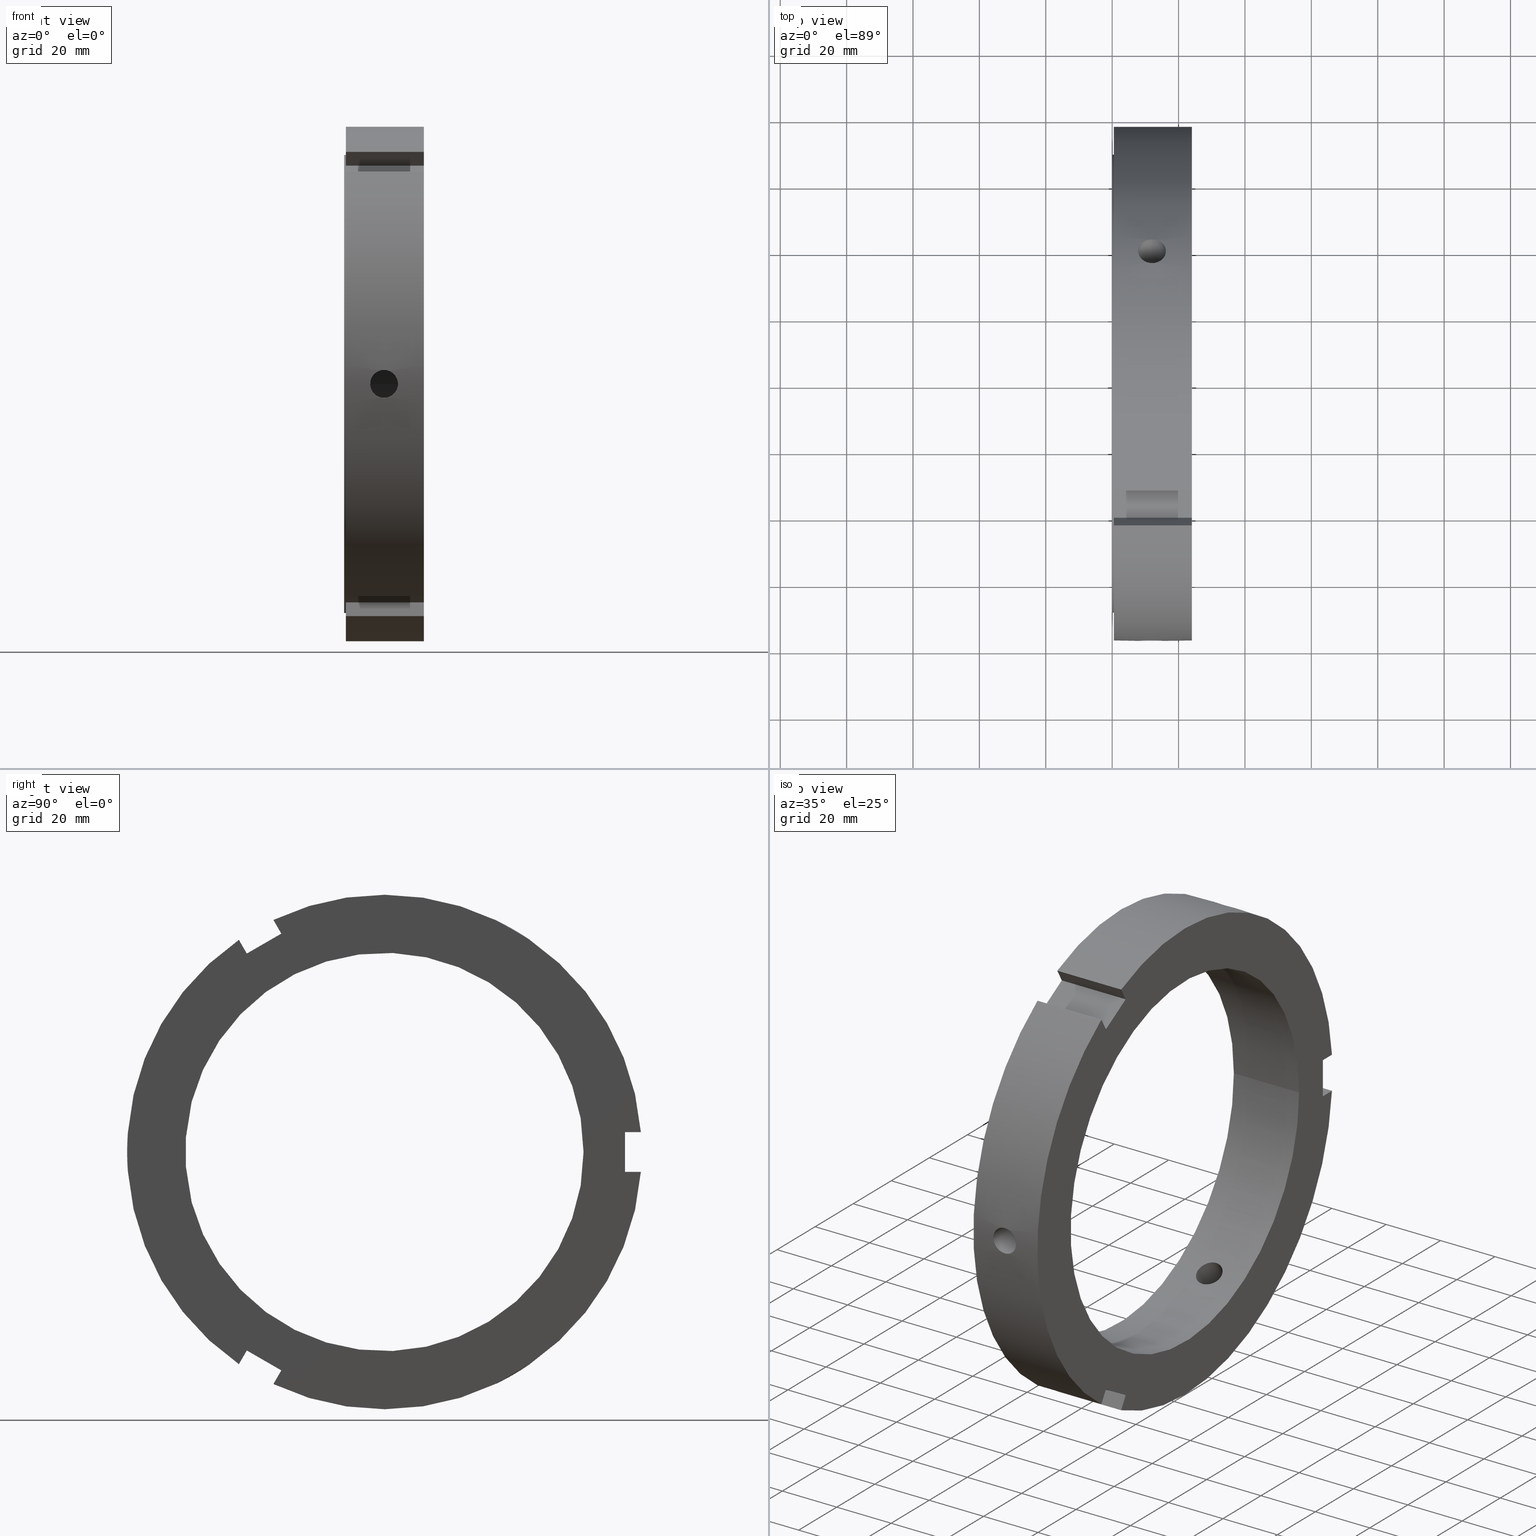
[diagram: canonical four-view strip — front | top / right | iso, engineering-drawing reading convention]
A machine part, canonical four-view strip (front | top / right | iso — engineering-drawing reading convention). The complete STEP part file that produces these views, byte-faithful:
ISO-10303-21;
HEADER;
/****************************************************************
 * Generated by software with PDE/Lib inside                    *
 * PDElib Version v51a, created Thu 01/14/2010                  *
 * ITI Transcendata (http://www.transcendata.com/)              *
 ****************************************************************/
FILE_DESCRIPTION((''),'2;1');
FILE_NAME('\\\\CAD-SVN\\cad-svn\\\X2\628088538AB2\X0\\\FKD\X2\88FD4F5C\X0\SP\\\X2\90E854C130E930A430D630E930EA\X0\\\HP \X2\30A230C330D730C730FC30C87528\X0\CAD\X2\30C730FC30BFFF0867007D42FF09\X0\\\3D data\\ZMT\\FKD ZMT120.stp','2014-07-16T14:51:15',('fkd-ct1n'),(''),'Autodesk Inventor 2011','Autodesk Inventor 2011','');
FILE_SCHEMA(('AUTOMOTIVE_DESIGN { 1 0 10303 214 1 1 1 1 }'));
ENDSEC;
DATA;
#5=APPLICATION_CONTEXT('automotive design');
#6=APPLICATION_PROTOCOL_DEFINITION('International Standard','automotive_design',2001,#5);
#7=PRODUCT_CONTEXT('',#5,'mechanical');
#8=PRODUCT('FKD ZMT120','FKD ZMT120',$,(#7));
#9=PRODUCT_RELATED_PRODUCT_CATEGORY('part',$,(#8));
#10=PRODUCT_DEFINITION_FORMATION('',$,#8);
#11=PRODUCT_DEFINITION_CONTEXT('part definition',#5,'design');
#12=PRODUCT_DEFINITION('',$,#10,#11);
#18=(NAMED_UNIT(*)PLANE_ANGLE_UNIT()SI_UNIT($,.RADIAN.));
#19=DIMENSIONAL_EXPONENTS(0.0,0.0,0.0,0.0,0.0,0.0,0.0);
#20=PLANE_ANGLE_MEASURE_WITH_UNIT(PLANE_ANGLE_MEASURE(0.017453292500000),#18);
#24=(CONVERSION_BASED_UNIT('DEGREE',#20)NAMED_UNIT(#19)PLANE_ANGLE_UNIT());
#28=(NAMED_UNIT(*)SI_UNIT($,.STERADIAN.)SOLID_ANGLE_UNIT());
#32=(LENGTH_UNIT()NAMED_UNIT(*)SI_UNIT(.MILLI.,.METRE.));
#34=UNCERTAINTY_MEASURE_WITH_UNIT(LENGTH_MEASURE(0.010000000000000),#32,'DISTANCE_ACCURACY_VALUE','');
#36=(GEOMETRIC_REPRESENTATION_CONTEXT(3)GLOBAL_UNCERTAINTY_ASSIGNED_CONTEXT((#34))GLOBAL_UNIT_ASSIGNED_CONTEXT((#24,#28,#32))REPRESENTATION_CONTEXT('None','None'));
#37=AXIS2_PLACEMENT_3D('',#38,#39,#40);
#38=CARTESIAN_POINT('',(0.0,0.0,0.0));
#39=DIRECTION('',(0.0,0.0,1.0));
#40=DIRECTION('',(1.0,0.0,0.0));
#41=SHAPE_REPRESENTATION('',(#37),#36);
#42=PRODUCT_DEFINITION_SHAPE('','',#12);
#43=SHAPE_DEFINITION_REPRESENTATION(#42,#41);
#49=(NAMED_UNIT(*)PLANE_ANGLE_UNIT()SI_UNIT($,.RADIAN.));
#50=DIMENSIONAL_EXPONENTS(0.0,0.0,0.0,0.0,0.0,0.0,0.0);
#51=PLANE_ANGLE_MEASURE_WITH_UNIT(PLANE_ANGLE_MEASURE(0.017453292500000),#49);
#55=(CONVERSION_BASED_UNIT('DEGREE',#51)NAMED_UNIT(#50)PLANE_ANGLE_UNIT());
#59=(NAMED_UNIT(*)SI_UNIT($,.STERADIAN.)SOLID_ANGLE_UNIT());
#63=(LENGTH_UNIT()NAMED_UNIT(*)SI_UNIT(.MILLI.,.METRE.));
#65=UNCERTAINTY_MEASURE_WITH_UNIT(LENGTH_MEASURE(0.000001000000000),#63,'DISTANCE_ACCURACY_VALUE','');
#67=(GEOMETRIC_REPRESENTATION_CONTEXT(3)GLOBAL_UNCERTAINTY_ASSIGNED_CONTEXT((#65))GLOBAL_UNIT_ASSIGNED_CONTEXT((#55,#59,#63))REPRESENTATION_CONTEXT('','3D'));
#68=CARTESIAN_POINT('',(23.999999999999986,-41.446152422706668,-59.786841774371794));
#69=DIRECTION('',(0.0,-0.866025403784438,0.500000000000001));
#70=DIRECTION('',(-1.0,0.0,0.0));
#71=AXIS2_PLACEMENT_3D('',#68,#69,#70);
#72=PLANE('',#71);
#73=CARTESIAN_POINT('',(0.499999999999980,-41.446152422706668,-59.786841774371794));
#74=VERTEX_POINT('',#73);
#75=CARTESIAN_POINT('',(0.499999999999980,-43.829848854707578,-63.915525104418016));
#76=VERTEX_POINT('',#75);
#77=CARTESIAN_POINT('',(0.499999999999978,-41.446152422706682,-59.786841774371794));
#78=DIRECTION('',(0.0,-0.500000000000000,-0.866025403784439));
#79=VECTOR('',#78,4.767392864001821);
#80=LINE('',#77,#79);
#81=EDGE_CURVE('',#74,#76,#80,.T.);
#82=ORIENTED_EDGE('',*,*,#81,.F.);
#83=CARTESIAN_POINT('',(23.999999999999986,-41.446152422706668,-59.786841774371794));
#84=VERTEX_POINT('',#83);
#85=CARTESIAN_POINT('',(23.999999999999986,-41.446152422706668,-59.786841774371794));
#86=DIRECTION('',(-1.0,0.0,0.0));
#87=VECTOR('',#86,23.500000000000007);
#88=LINE('',#85,#87);
#89=EDGE_CURVE('',#84,#74,#88,.T.);
#90=ORIENTED_EDGE('',*,*,#89,.F.);
#91=CARTESIAN_POINT('',(23.999999999999986,-43.829848854707578,-63.915525104418016));
#92=VERTEX_POINT('',#91);
#93=CARTESIAN_POINT('',(23.999999999999986,-43.829848854707592,-63.915525104418023));
#94=DIRECTION('',(0.0,0.500000000000001,0.866025403784438));
#95=VECTOR('',#94,4.767392864001815);
#96=LINE('',#93,#95);
#97=EDGE_CURVE('',#92,#84,#96,.T.);
#98=ORIENTED_EDGE('',*,*,#97,.F.);
#99=CARTESIAN_POINT('',(0.499999999999979,-43.829848854707578,-63.915525104417995));
#100=DIRECTION('',(1.0,0.0,0.0));
#101=VECTOR('',#100,23.500000000000007);
#102=LINE('',#99,#101);
#103=EDGE_CURVE('',#76,#92,#102,.T.);
#104=ORIENTED_EDGE('',*,*,#103,.F.);
#105=EDGE_LOOP('',(#82,#90,#98,#104));
#106=FACE_OUTER_BOUND('',#105,.T.);
#107=ADVANCED_FACE('',(#106),#72,.F.);
#108=CARTESIAN_POINT('',(23.999999999999986,-33.553847577293411,-70.116968793293992));
#109=DIRECTION('',(0.0,0.866025403784438,-0.500000000000001));
#110=DIRECTION('',(1.0,0.0,0.0));
#111=AXIS2_PLACEMENT_3D('',#108,#109,#110);
#112=PLANE('',#111);
#113=CARTESIAN_POINT('',(0.499999999999980,-33.437544009294321,-69.915525104418009));
#114=VERTEX_POINT('',#113);
#115=CARTESIAN_POINT('',(0.499999999999980,-31.053847577293411,-65.786841774371794));
#116=VERTEX_POINT('',#115);
#117=CARTESIAN_POINT('',(0.499999999999978,-33.437544009294328,-69.915525104418037));
#118=DIRECTION('',(0.0,0.500000000000000,0.866025403784439));
#119=VECTOR('',#118,4.767392864001821);
#120=LINE('',#117,#119);
#121=EDGE_CURVE('',#114,#116,#120,.T.);
#122=ORIENTED_EDGE('',*,*,#121,.F.);
#123=CARTESIAN_POINT('',(23.999999999999986,-33.437544009294321,-69.915525104418009));
#124=VERTEX_POINT('',#123);
#125=CARTESIAN_POINT('',(23.999999999999986,-33.437544009294314,-69.915525104418009));
#126=DIRECTION('',(-1.0,0.0,0.0));
#127=VECTOR('',#126,23.500000000000007);
#128=LINE('',#125,#127);
#129=EDGE_CURVE('',#124,#114,#128,.T.);
#130=ORIENTED_EDGE('',*,*,#129,.F.);
#131=CARTESIAN_POINT('',(23.999999999999986,-31.053847577293411,-65.786841774371794));
#132=VERTEX_POINT('',#131);
#133=CARTESIAN_POINT('',(23.999999999999986,-31.053847577293411,-65.786841774371794));
#134=DIRECTION('',(0.0,-0.500000000000000,-0.866025403784439));
#135=VECTOR('',#134,4.767392864001837);
#136=LINE('',#133,#135);
#137=EDGE_CURVE('',#132,#124,#136,.T.);
#138=ORIENTED_EDGE('',*,*,#137,.F.);
#139=CARTESIAN_POINT('',(23.999999999999986,-31.053847577293411,-65.786841774371794));
#140=DIRECTION('',(-1.0,0.0,0.0));
#141=VECTOR('',#140,23.500000000000007);
#142=LINE('',#139,#141);
#143=EDGE_CURVE('',#132,#116,#142,.T.);
#144=ORIENTED_EDGE('',*,*,#143,.T.);
#145=EDGE_LOOP('',(#122,#130,#138,#144));
#146=FACE_OUTER_BOUND('',#145,.T.);
#147=ADVANCED_FACE('',(#146),#112,.F.);
#148=CARTESIAN_POINT('',(23.999999999999986,-31.053847577293411,-65.786841774371794));
#149=DIRECTION('',(0.0,0.500000000000001,0.866025403784438));
#150=DIRECTION('',(0.0,-0.866025403784438,0.500000000000000));
#151=AXIS2_PLACEMENT_3D('',#148,#149,#150);
#152=PLANE('',#151);
#153=CARTESIAN_POINT('',(0.499999999999978,-31.053847577293425,-65.786841774371808));
#154=DIRECTION('',(0.0,-0.866025403784438,0.500000000000000));
#155=VECTOR('',#154,11.999999999999995);
#156=LINE('',#153,#155);
#157=EDGE_CURVE('',#116,#74,#156,.T.);
#158=ORIENTED_EDGE('',*,*,#157,.F.);
#159=ORIENTED_EDGE('',*,*,#143,.F.);
#160=CARTESIAN_POINT('',(23.999999999999986,-41.446152422706675,-59.786841774371794));
#161=DIRECTION('',(0.0,0.866025403784438,-0.500000000000001));
#162=VECTOR('',#161,11.999999999999988);
#163=LINE('',#160,#162);
#164=EDGE_CURVE('',#84,#132,#163,.T.);
#165=ORIENTED_EDGE('',*,*,#164,.F.);
#166=ORIENTED_EDGE('',*,*,#89,.T.);
#167=EDGE_LOOP('',(#158,#159,#165,#166));
#168=FACE_OUTER_BOUND('',#167,.T.);
#169=ADVANCED_FACE('',(#168),#152,.F.);
#170=CARTESIAN_POINT('',(11.999999999999984,110.174799629861370,190.828350672640340));
#171=DIRECTION('',(0.0,-0.500000000000001,-0.866025403784438));
#172=DIRECTION('',(-1.0,0.0,0.0));
#173=AXIS2_PLACEMENT_3D('',#170,#171,#172);
#174=CYLINDRICAL_SURFACE('',#173,4.188000000000000);
#175=CARTESIAN_POINT('',(11.999999999999984,42.320294496695240,64.924900259553624));
#176=VERTEX_POINT('',#175);
#177=CARTESIAN_POINT('',(11.999999999999984,42.320294496695247,64.924900259553624));
#178=CARTESIAN_POINT('',(12.525964593773827,42.320294496695247,64.924900259553624));
#179=CARTESIAN_POINT('',(13.086917241225173,42.232201750691601,64.982589392082332));
#180=CARTESIAN_POINT('',(14.118723575508250,41.872717265855627,65.214809188765045));
#181=CARTESIAN_POINT('',(14.589585949451681,41.601176498465279,65.389070450448429));
#182=CARTESIAN_POINT('',(15.333140342570605,40.971455917133348,65.785471195247538));
#183=CARTESIAN_POINT('',(15.655432256882104,40.571244418953100,66.034009391728972));
#184=CARTESIAN_POINT('',(16.082864919867323,39.688345750655046,66.568397018586751));
#185=CARTESIAN_POINT('',(16.187999999999985,39.205498568363375,66.853986572233893));
#186=CARTESIAN_POINT('',(16.187999999999985,38.294501431636718,67.379951014354006));
#187=CARTESIAN_POINT('',(16.082864919867326,37.805750031977013,67.655314163540766));
#188=CARTESIAN_POINT('',(15.655432256882111,36.901507437501060,68.152733025825427));
#189=CARTESIAN_POINT('',(15.333140342570605,36.486161296447250,68.375057251895441));
#190=CARTESIAN_POINT('',(14.589585949451687,35.828007890706168,68.722210900215259));
#191=CARTESIAN_POINT('',(14.118723575508263,35.541322827497645,68.870241472096723));
#192=CARTESIAN_POINT('',(13.086917241225184,35.160472341890767,69.065454269889685));
#193=CARTESIAN_POINT('',(12.525964593773828,35.066465714596802,69.112900259553612));
#194=CARTESIAN_POINT('',(11.474035406226140,35.066465714596802,69.112900259553612));
#195=CARTESIAN_POINT('',(10.913082758774785,35.160472341890767,69.065454269889685));
#196=CARTESIAN_POINT('',(9.881276424491706,35.541322827497638,68.870241472096723));
#197=CARTESIAN_POINT('',(9.410414050548283,35.828007890706168,68.722210900215259));
#198=CARTESIAN_POINT('',(8.666859657429363,36.486161296447250,68.375057251895441));
#199=CARTESIAN_POINT('',(8.344567743117853,36.901507437501060,68.152733025825427));
#200=CARTESIAN_POINT('',(7.917135080132639,37.805750031977013,67.655314163540766));
#201=CARTESIAN_POINT('',(7.811999999999983,38.294501431636718,67.379951014354006));
#202=CARTESIAN_POINT('',(7.811999999999983,39.205498568363375,66.853986572233893));
#203=CARTESIAN_POINT('',(7.917135080132642,39.688345750655039,66.568397018586765));
#204=CARTESIAN_POINT('',(8.344567743117858,40.571244418953086,66.034009391728972));
#205=CARTESIAN_POINT('',(8.666859657429360,40.971455917133348,65.785471195247538));
#206=CARTESIAN_POINT('',(9.410414050548283,41.601176498465279,65.389070450448429));
#207=CARTESIAN_POINT('',(9.881276424491714,41.872717265855627,65.214809188765045));
#208=CARTESIAN_POINT('',(10.913082758774790,42.232201750691601,64.982589392082332));
#209=CARTESIAN_POINT('',(11.474035406226140,42.320294496695254,64.924900259553610));
#210=CARTESIAN_POINT('',(11.999999999999984,42.320294496695254,64.924900259553610));
#211=B_SPLINE_CURVE_WITH_KNOTS('',3,(#177,#178,#179,#180,#181,#182,#183,#184,#185,#186,#187,#188,#189,#190,#191,#192,#193,#194,#195,#196,#197,#198,#199,#200,#201,#202,#203,#204,#205,#206,#207,#208,#209,#210),.UNSPECIFIED.,.T.,.U.,(4,2,2,2,2,2,2,2,2,2,2,2,2,2,2,2,4),(0.0,0.157789378132153,0.315578756264306,0.473368088900339,0.631157421536372,0.788946754172404,0.946736086808437,1.104525464940590,1.262314843072743,1.420104221204896,1.577893599337049,1.735682931973082,1.893472264609114,2.051261597245147,2.209050929881181,2.366840308013333,2.524629686145486),.UNSPECIFIED.);
#212=EDGE_CURVE('',#176,#176,#211,.T.);
#213=ORIENTED_EDGE('',*,*,#212,.F.);
#214=EDGE_LOOP('',(#213));
#215=FACE_OUTER_BOUND('',#214,.T.);
#216=CARTESIAN_POINT('',(11.999999999999984,33.553744560647907,49.740790363229969));
#217=VERTEX_POINT('',#216);
#218=CARTESIAN_POINT('',(11.999999999999984,33.553744560647921,49.740790363229962));
#219=CARTESIAN_POINT('',(11.473961648556079,33.553744560647921,49.740790363229962));
#220=CARTESIAN_POINT('',(10.912977352464576,33.466494284827178,49.799996287970309));
#221=CARTESIAN_POINT('',(9.881191404897139,33.110119315408284,50.037644517113520));
#222=CARTESIAN_POINT('',(9.410375211702402,32.840803123454606,50.215736349348091));
#223=CARTESIAN_POINT('',(8.666898687981091,32.215303488662116,50.619292249214325));
#224=CARTESIAN_POINT('',(8.344617878141040,31.817341154783037,50.871633920211522));
#225=CARTESIAN_POINT('',(7.917163805398965,30.937575076804897,51.411407141180391));
#226=CARTESIAN_POINT('',(7.811999999999983,30.455562209413166,51.698505262828995));
#227=CARTESIAN_POINT('',(7.811999999999983,29.544437790586905,52.224543191303574));
#228=CARTESIAN_POINT('',(7.917163805398965,29.054797090164548,52.498429518591500));
#229=CARTESIAN_POINT('',(8.344617878141044,28.147456729533875,52.990442681023929));
#230=CARTESIAN_POINT('',(8.666898687981096,27.729941265077372,53.208917336413961));
#231=CARTESIAN_POINT('',(9.410375211702407,27.067701786549868,53.548837960269033));
#232=CARTESIAN_POINT('',(9.881191404897137,26.778811639651376,53.693026708034125));
#233=CARTESIAN_POINT('',(10.912977352464575,26.394814751339521,53.882832370252189));
#234=CARTESIAN_POINT('',(11.473961648556079,26.299915778549455,53.928790363229950));
#235=CARTESIAN_POINT('',(12.526038351443889,26.299915778549451,53.928790363229950));
#236=CARTESIAN_POINT('',(13.087022647535388,26.394814751339524,53.882832370252189));
#237=CARTESIAN_POINT('',(14.118808595102827,26.778811639651380,53.693026708034125));
#238=CARTESIAN_POINT('',(14.589624788297559,27.067701786549865,53.548837960269026));
#239=CARTESIAN_POINT('',(15.333101312018872,27.729941265077372,53.208917336413961));
#240=CARTESIAN_POINT('',(15.655382121858930,28.147456729533886,52.990442681023929));
#241=CARTESIAN_POINT('',(16.082836194601008,29.054797090164559,52.498429518591500));
#242=CARTESIAN_POINT('',(16.187999999999985,29.544437790586905,52.224543191303574));
#243=CARTESIAN_POINT('',(16.187999999999985,30.455562209413166,51.698505262828995));
#244=CARTESIAN_POINT('',(16.082836194601001,30.937575076804894,51.411407141180391));
#245=CARTESIAN_POINT('',(15.655382121858930,31.817341154783033,50.871633920211522));
#246=CARTESIAN_POINT('',(15.333101312018877,32.215303488662116,50.619292249214325));
#247=CARTESIAN_POINT('',(14.589624788297566,32.840803123454606,50.215736349348091));
#248=CARTESIAN_POINT('',(14.118808595102825,33.110119315408284,50.037644517113520));
#249=CARTESIAN_POINT('',(13.087022647535392,33.466494284827178,49.799996287970309));
#250=CARTESIAN_POINT('',(12.526038351443887,33.553744560647914,49.740790363229962));
#251=CARTESIAN_POINT('',(11.999999999999984,33.553744560647914,49.740790363229962));
#252=B_SPLINE_CURVE_WITH_KNOTS('',3,(#218,#219,#220,#221,#222,#223,#224,#225,#226,#227,#228,#229,#230,#231,#232,#233,#234,#235,#236,#237,#238,#239,#240,#241,#242,#243,#244,#245,#246,#247,#248,#249,#250,#251),.UNSPECIFIED.,.T.,.U.,(4,2,2,2,2,2,2,2,2,2,2,2,2,2,2,2,4),(0.0,0.157811505433171,0.315623010866342,0.473434389408718,0.631245767951093,0.789057146493469,0.946868525035844,1.104680030469016,1.262491535902187,1.420303041335359,1.578114546768530,1.735925925310906,1.893737303853281,2.051548682395656,2.209360060938032,2.367171566371203,2.524983071804374),.UNSPECIFIED.);
#253=EDGE_CURVE('',#217,#217,#252,.T.);
#254=ORIENTED_EDGE('',*,*,#253,.F.);
#255=EDGE_LOOP('',(#254));
#256=FACE_BOUND('',#255,.T.);
#257=ADVANCED_FACE('',(#215,#256),#174,.F.);
#258=CARTESIAN_POINT('',(23.999999999999986,-31.053847577293357,65.786841774371808));
#259=DIRECTION('',(0.0,0.866025403784439,0.500000000000000));
#260=DIRECTION('',(-1.0,0.0,0.0));
#261=AXIS2_PLACEMENT_3D('',#258,#259,#260);
#262=PLANE('',#261);
#263=CARTESIAN_POINT('',(0.499999999999980,-31.053847577293357,65.786841774371808));
#264=VERTEX_POINT('',#263);
#265=CARTESIAN_POINT('',(0.499999999999980,-33.437544009294264,69.915525104418037));
#266=VERTEX_POINT('',#265);
#267=CARTESIAN_POINT('',(0.499999999999983,-31.053847577293364,65.786841774371823));
#268=DIRECTION('',(0.0,-0.499999999999999,0.866025403784439));
#269=VECTOR('',#268,4.767392864001820);
#270=LINE('',#267,#269);
#271=EDGE_CURVE('',#264,#266,#270,.T.);
#272=ORIENTED_EDGE('',*,*,#271,.F.);
#273=CARTESIAN_POINT('',(23.999999999999986,-31.053847577293357,65.786841774371808));
#274=VERTEX_POINT('',#273);
#275=CARTESIAN_POINT('',(23.999999999999986,-31.053847577293357,65.786841774371808));
#276=DIRECTION('',(-1.0,0.0,0.0));
#277=VECTOR('',#276,23.500000000000007);
#278=LINE('',#275,#277);
#279=EDGE_CURVE('',#274,#264,#278,.T.);
#280=ORIENTED_EDGE('',*,*,#279,.F.);
#281=CARTESIAN_POINT('',(23.999999999999986,-33.437544009294264,69.915525104418037));
#282=VERTEX_POINT('',#281);
#283=CARTESIAN_POINT('',(23.999999999999986,-33.437544009294271,69.915525104418052));
#284=DIRECTION('',(0.0,0.499999999999999,-0.866025403784439));
#285=VECTOR('',#284,4.767392864001818);
#286=LINE('',#283,#285);
#287=EDGE_CURVE('',#282,#274,#286,.T.);
#288=ORIENTED_EDGE('',*,*,#287,.F.);
#289=CARTESIAN_POINT('',(0.499999999999979,-33.437544009294264,69.915525104418037));
#290=DIRECTION('',(1.0,0.0,0.0));
#291=VECTOR('',#290,23.500000000000007);
#292=LINE('',#289,#291);
#293=EDGE_CURVE('',#266,#282,#292,.T.);
#294=ORIENTED_EDGE('',*,*,#293,.F.);
#295=EDGE_LOOP('',(#272,#280,#288,#294));
#296=FACE_OUTER_BOUND('',#295,.T.);
#297=ADVANCED_FACE('',(#296),#262,.F.);
#298=CARTESIAN_POINT('',(23.999999999999986,-43.946152422706618,64.116968793294006));
#299=DIRECTION('',(0.0,-0.866025403784439,-0.500000000000000));
#300=DIRECTION('',(1.0,0.0,0.0));
#301=AXIS2_PLACEMENT_3D('',#298,#299,#300);
#302=PLANE('',#301);
#303=CARTESIAN_POINT('',(0.499999999999980,-43.829848854707535,63.915525104418045));
#304=VERTEX_POINT('',#303);
#305=CARTESIAN_POINT('',(0.499999999999980,-41.446152422706618,59.786841774371815));
#306=VERTEX_POINT('',#305);
#307=CARTESIAN_POINT('',(0.499999999999983,-43.829848854707535,63.915525104418045));
#308=DIRECTION('',(0.0,0.500000000000000,-0.866025403784439));
#309=VECTOR('',#308,4.767392864001821);
#310=LINE('',#307,#309);
#311=EDGE_CURVE('',#304,#306,#310,.T.);
#312=ORIENTED_EDGE('',*,*,#311,.F.);
#313=CARTESIAN_POINT('',(23.999999999999986,-43.829848854707535,63.915525104418045));
#314=VERTEX_POINT('',#313);
#315=CARTESIAN_POINT('',(23.999999999999986,-43.829848854707521,63.915525104418037));
#316=DIRECTION('',(-1.0,0.0,0.0));
#317=VECTOR('',#316,23.500000000000007);
#318=LINE('',#315,#317);
#319=EDGE_CURVE('',#314,#304,#318,.T.);
#320=ORIENTED_EDGE('',*,*,#319,.F.);
#321=CARTESIAN_POINT('',(23.999999999999986,-41.446152422706618,59.786841774371815));
#322=VERTEX_POINT('',#321);
#323=CARTESIAN_POINT('',(23.999999999999986,-41.446152422706632,59.786841774371823));
#324=DIRECTION('',(0.0,-0.499999999999999,0.866025403784439));
#325=VECTOR('',#324,4.767392864001818);
#326=LINE('',#323,#325);
#327=EDGE_CURVE('',#322,#314,#326,.T.);
#328=ORIENTED_EDGE('',*,*,#327,.F.);
#329=CARTESIAN_POINT('',(23.999999999999986,-41.446152422706618,59.786841774371815));
#330=DIRECTION('',(-1.0,0.0,0.0));
#331=VECTOR('',#330,23.500000000000007);
#332=LINE('',#329,#331);
#333=EDGE_CURVE('',#322,#306,#332,.T.);
#334=ORIENTED_EDGE('',*,*,#333,.T.);
#335=EDGE_LOOP('',(#312,#320,#328,#334));
#336=FACE_OUTER_BOUND('',#335,.T.);
#337=ADVANCED_FACE('',(#336),#302,.F.);
#338=CARTESIAN_POINT('',(23.999999999999986,-41.446152422706618,59.786841774371815));
#339=DIRECTION('',(0.0,0.500000000000000,-0.866025403784439));
#340=DIRECTION('',(0.0,0.866025403784439,0.500000000000000));
#341=AXIS2_PLACEMENT_3D('',#338,#339,#340);
#342=PLANE('',#341);
#343=CARTESIAN_POINT('',(0.499999999999983,-41.446152422706632,59.786841774371830));
#344=DIRECTION('',(0.0,0.866025403784439,0.500000000000000));
#345=VECTOR('',#344,11.999999999999993);
#346=LINE('',#343,#345);
#347=EDGE_CURVE('',#306,#264,#346,.T.);
#348=ORIENTED_EDGE('',*,*,#347,.F.);
#349=ORIENTED_EDGE('',*,*,#333,.F.);
#350=CARTESIAN_POINT('',(23.999999999999986,-31.053847577293364,65.786841774371837));
#351=DIRECTION('',(0.0,-0.866025403784439,-0.500000000000000));
#352=VECTOR('',#351,12.000000000000004);
#353=LINE('',#350,#352);
#354=EDGE_CURVE('',#274,#322,#353,.T.);
#355=ORIENTED_EDGE('',*,*,#354,.F.);
#356=ORIENTED_EDGE('',*,*,#279,.T.);
#357=EDGE_LOOP('',(#348,#349,#355,#356));
#358=FACE_OUTER_BOUND('',#357,.T.);
#359=ADVANCED_FACE('',(#358),#342,.F.);
#360=CARTESIAN_POINT('',(11.999999999999984,110.174799629861210,-190.828350672640450));
#361=DIRECTION('',(0.0,-0.500000000000000,0.866025403784439));
#362=DIRECTION('',(-1.0,0.0,0.0));
#363=AXIS2_PLACEMENT_3D('',#360,#361,#362);
#364=CYLINDRICAL_SURFACE('',#363,4.188000000000000);
#365=CARTESIAN_POINT('',(11.999999999999984,35.066465714596731,-69.112900259553655));
#366=VERTEX_POINT('',#365);
#367=CARTESIAN_POINT('',(11.999999999999982,35.066465714596731,-69.112900259553655));
#368=CARTESIAN_POINT('',(12.525964593773827,35.066465714596731,-69.112900259553655));
#369=CARTESIAN_POINT('',(13.086917241225184,35.160472341890710,-69.065454269889713));
#370=CARTESIAN_POINT('',(14.118723575508263,35.541322827497588,-68.870241472096751));
#371=CARTESIAN_POINT('',(14.589585949451681,35.828007890706118,-68.722210900215288));
#372=CARTESIAN_POINT('',(15.333140342570601,36.486161296447207,-68.375057251895470));
#373=CARTESIAN_POINT('',(15.655432256882120,36.901507437500996,-68.152733025825455));
#374=CARTESIAN_POINT('',(16.082864919867330,37.805750031976956,-67.655314163540794));
#375=CARTESIAN_POINT('',(16.187999999999985,38.294501431636661,-67.379951014354049));
#376=CARTESIAN_POINT('',(16.187999999999985,39.205498568363311,-66.853986572233936));
#377=CARTESIAN_POINT('',(16.082864919867326,39.688345750654968,-66.568397018586793));
#378=CARTESIAN_POINT('',(15.655432256882108,40.571244418953029,-66.034009391729001));
#379=CARTESIAN_POINT('',(15.333140342570605,40.971455917133284,-65.785471195247567));
#380=CARTESIAN_POINT('',(14.589585949451681,41.601176498465229,-65.389070450448457));
#381=CARTESIAN_POINT('',(14.118723575508255,41.872717265855563,-65.214809188765074));
#382=CARTESIAN_POINT('',(13.086917241225180,42.232201750691544,-64.982589392082360));
#383=CARTESIAN_POINT('',(12.525964593773827,42.320294496695183,-64.924900259553652));
#384=CARTESIAN_POINT('',(11.474035406226141,42.320294496695183,-64.924900259553652));
#385=CARTESIAN_POINT('',(10.913082758774788,42.232201750691544,-64.982589392082360));
#386=CARTESIAN_POINT('',(9.881276424491713,41.872717265855563,-65.214809188765074));
#387=CARTESIAN_POINT('',(9.410414050548287,41.601176498465229,-65.389070450448457));
#388=CARTESIAN_POINT('',(8.666859657429363,40.971455917133284,-65.785471195247567));
#389=CARTESIAN_POINT('',(8.344567743117864,40.571244418953029,-66.034009391729001));
#390=CARTESIAN_POINT('',(7.917135080132642,39.688345750654968,-66.568397018586793));
#391=CARTESIAN_POINT('',(7.811999999999983,39.205498568363311,-66.853986572233936));
#392=CARTESIAN_POINT('',(7.811999999999983,38.294501431636661,-67.379951014354049));
#393=CARTESIAN_POINT('',(7.917135080132637,37.805750031976956,-67.655314163540794));
#394=CARTESIAN_POINT('',(8.344567743117846,36.901507437500996,-68.152733025825455));
#395=CARTESIAN_POINT('',(8.666859657429365,36.486161296447207,-68.375057251895470));
#396=CARTESIAN_POINT('',(9.410414050548283,35.828007890706118,-68.722210900215288));
#397=CARTESIAN_POINT('',(9.881276424491700,35.541322827497588,-68.870241472096751));
#398=CARTESIAN_POINT('',(10.913082758774781,35.160472341890710,-69.065454269889713));
#399=CARTESIAN_POINT('',(11.474035406226140,35.066465714596731,-69.112900259553655));
#400=CARTESIAN_POINT('',(11.999999999999984,35.066465714596731,-69.112900259553655));
#401=B_SPLINE_CURVE_WITH_KNOTS('',3,(#367,#368,#369,#370,#371,#372,#373,#374,#375,#376,#377,#378,#379,#380,#381,#382,#383,#384,#385,#386,#387,#388,#389,#390,#391,#392,#393,#394,#395,#396,#397,#398,#399,#400),.UNSPECIFIED.,.T.,.U.,(4,2,2,2,2,2,2,2,2,2,2,2,2,2,2,2,4),(0.0,0.157789378132153,0.315578756264307,0.473368088900339,0.631157421536370,0.788946754172404,0.946736086808437,1.104525464940590,1.262314843072742,1.420104221204895,1.577893599337047,1.735682931973080,1.893472264609114,2.051261597245146,2.209050929881177,2.366840308013331,2.524629686145484),.UNSPECIFIED.);
#402=EDGE_CURVE('',#366,#366,#401,.T.);
#403=ORIENTED_EDGE('',*,*,#402,.F.);
#404=EDGE_LOOP('',(#403));
#405=FACE_OUTER_BOUND('',#404,.T.);
#406=CARTESIAN_POINT('',(11.999999999999984,26.299915778549412,-53.928790363229986));
#407=VERTEX_POINT('',#406);
#408=CARTESIAN_POINT('',(11.999999999999984,26.299915778549412,-53.928790363229986));
#409=CARTESIAN_POINT('',(11.473961648556079,26.299915778549412,-53.928790363229986));
#410=CARTESIAN_POINT('',(10.912977352464576,26.394814751339474,-53.882832370252210));
#411=CARTESIAN_POINT('',(9.881191404897137,26.778811639651330,-53.693026708034147));
#412=CARTESIAN_POINT('',(9.410375211702405,27.067701786549819,-53.548837960269054));
#413=CARTESIAN_POINT('',(8.666898687981092,27.729941265077322,-53.208917336413975));
#414=CARTESIAN_POINT('',(8.344617878141031,28.147456729533840,-52.990442681023950));
#415=CARTESIAN_POINT('',(7.917163805398961,29.054797090164506,-52.498429518591514));
#416=CARTESIAN_POINT('',(7.811999999999984,29.544437790586855,-52.224543191303603));
#417=CARTESIAN_POINT('',(7.811999999999983,30.455562209413117,-51.698505262829016));
#418=CARTESIAN_POINT('',(7.917163805398965,30.937575076804844,-51.411407141180419));
#419=CARTESIAN_POINT('',(8.344617878141033,31.817341154782977,-50.871633920211544));
#420=CARTESIAN_POINT('',(8.666898687981096,32.215303488662045,-50.619292249214368));
#421=CARTESIAN_POINT('',(9.410375211702402,32.840803123454535,-50.215736349348120));
#422=CARTESIAN_POINT('',(9.881191404897136,33.110119315408227,-50.037644517113549));
#423=CARTESIAN_POINT('',(10.912977352464575,33.466494284827128,-49.799996287970330));
#424=CARTESIAN_POINT('',(11.473961648556077,33.553744560647857,-49.740790363229983));
#425=CARTESIAN_POINT('',(12.526038351443891,33.553744560647857,-49.740790363229983));
#426=CARTESIAN_POINT('',(13.087022647535393,33.466494284827135,-49.799996287970345));
#427=CARTESIAN_POINT('',(14.118808595102834,33.110119315408241,-50.037644517113556));
#428=CARTESIAN_POINT('',(14.589624788297566,32.840803123454535,-50.215736349348120));
#429=CARTESIAN_POINT('',(15.333101312018870,32.215303488662038,-50.619292249214368));
#430=CARTESIAN_POINT('',(15.655382121858940,31.817341154782973,-50.871633920211551));
#431=CARTESIAN_POINT('',(16.082836194601004,30.937575076804841,-51.411407141180433));
#432=CARTESIAN_POINT('',(16.187999999999985,30.455562209413117,-51.698505262829016));
#433=CARTESIAN_POINT('',(16.187999999999985,29.544437790586855,-52.224543191303603));
#434=CARTESIAN_POINT('',(16.082836194601008,29.054797090164506,-52.498429518591514));
#435=CARTESIAN_POINT('',(15.655382121858938,28.147456729533840,-52.990442681023950));
#436=CARTESIAN_POINT('',(15.333101312018876,27.729941265077322,-53.208917336413975));
#437=CARTESIAN_POINT('',(14.589624788297563,27.067701786549819,-53.548837960269054));
#438=CARTESIAN_POINT('',(14.118808595102832,26.778811639651330,-53.693026708034147));
#439=CARTESIAN_POINT('',(13.087022647535392,26.394814751339474,-53.882832370252210));
#440=CARTESIAN_POINT('',(12.526038351443889,26.299915778549412,-53.928790363229986));
#441=CARTESIAN_POINT('',(11.999999999999984,26.299915778549412,-53.928790363229986));
#442=B_SPLINE_CURVE_WITH_KNOTS('',3,(#408,#409,#410,#411,#412,#413,#414,#415,#416,#417,#418,#419,#420,#421,#422,#423,#424,#425,#426,#427,#428,#429,#430,#431,#432,#433,#434,#435,#436,#437,#438,#439,#440,#441),.UNSPECIFIED.,.T.,.U.,(4,2,2,2,2,2,2,2,2,2,2,2,2,2,2,2,4),(0.0,0.157811505433171,0.315623010866343,0.473434389408718,0.631245767951093,0.789057146493467,0.946868525035841,1.104680030469013,1.262491535902185,1.420303041335357,1.578114546768529,1.735925925310903,1.893737303853277,2.051548682395652,2.209360060938028,2.367171566371199,2.524983071804371),.UNSPECIFIED.);
#443=EDGE_CURVE('',#407,#407,#442,.T.);
#444=ORIENTED_EDGE('',*,*,#443,.F.);
#445=EDGE_LOOP('',(#444));
#446=FACE_BOUND('',#445,.T.);
#447=ADVANCED_FACE('',(#405,#446),#364,.F.);
#448=CARTESIAN_POINT('',(23.999999999999986,68.750000000000000,0.0));
#449=DIRECTION('',(1.0,0.0,0.0));
#450=DIRECTION('',(0.0,0.0,-1.0));
#451=AXIS2_PLACEMENT_3D('',#448,#449,#450);
#452=PLANE('',#451);
#453=ORIENTED_EDGE('',*,*,#97,.T.);
#454=ORIENTED_EDGE('',*,*,#164,.T.);
#455=ORIENTED_EDGE('',*,*,#137,.T.);
#456=CARTESIAN_POINT('',(23.999999999999986,77.267392864001820,-5.999999999999996));
#457=VERTEX_POINT('',#456);
#458=CARTESIAN_POINT('',(23.999999999999986,0.0,0.0));
#459=DIRECTION('',(1.0,0.0,0.0));
#460=DIRECTION('',(0.0,1.0,0.0));
#461=AXIS2_PLACEMENT_3D('',#458,#459,#460);
#462=CIRCLE('',#461,77.500000000000000);
#463=EDGE_CURVE('',#124,#457,#462,.T.);
#464=ORIENTED_EDGE('',*,*,#463,.T.);
#465=CARTESIAN_POINT('',(23.999999999999986,72.500000000000000,-5.999999999999996));
#466=VERTEX_POINT('',#465);
#467=CARTESIAN_POINT('',(23.999999999999986,77.267392864001820,-5.999999999999996));
#468=DIRECTION('',(0.0,-1.0,0.0));
#469=VECTOR('',#468,4.767392864001820);
#470=LINE('',#467,#469);
#471=EDGE_CURVE('',#457,#466,#470,.T.);
#472=ORIENTED_EDGE('',*,*,#471,.T.);
#473=CARTESIAN_POINT('',(23.999999999999986,72.500000000000000,5.999999999999996));
#474=VERTEX_POINT('',#473);
#475=CARTESIAN_POINT('',(23.999999999999986,72.500000000000000,-5.999999999999996));
#476=DIRECTION('',(0.0,0.0,1.0));
#477=VECTOR('',#476,11.999999999999993);
#478=LINE('',#475,#477);
#479=EDGE_CURVE('',#466,#474,#478,.T.);
#480=ORIENTED_EDGE('',*,*,#479,.T.);
#481=CARTESIAN_POINT('',(23.999999999999986,77.267392864001820,5.999999999999996));
#482=VERTEX_POINT('',#481);
#483=CARTESIAN_POINT('',(23.999999999999986,72.500000000000000,5.999999999999996));
#484=DIRECTION('',(0.0,1.0,0.0));
#485=VECTOR('',#484,4.767392864001820);
#486=LINE('',#483,#485);
#487=EDGE_CURVE('',#474,#482,#486,.T.);
#488=ORIENTED_EDGE('',*,*,#487,.T.);
#489=CARTESIAN_POINT('',(23.999999999999986,0.0,0.0));
#490=DIRECTION('',(1.0,0.0,0.0));
#491=DIRECTION('',(0.0,1.0,0.0));
#492=AXIS2_PLACEMENT_3D('',#489,#490,#491);
#493=CIRCLE('',#492,77.500000000000000);
#494=EDGE_CURVE('',#482,#282,#493,.T.);
#495=ORIENTED_EDGE('',*,*,#494,.T.);
#496=ORIENTED_EDGE('',*,*,#287,.T.);
#497=ORIENTED_EDGE('',*,*,#354,.T.);
#498=ORIENTED_EDGE('',*,*,#327,.T.);
#499=CARTESIAN_POINT('',(23.999999999999986,0.0,0.0));
#500=DIRECTION('',(1.0,0.0,0.0));
#501=DIRECTION('',(0.0,1.0,0.0));
#502=AXIS2_PLACEMENT_3D('',#499,#500,#501);
#503=CIRCLE('',#502,77.500000000000000);
#504=EDGE_CURVE('',#314,#92,#503,.T.);
#505=ORIENTED_EDGE('',*,*,#504,.T.);
#506=EDGE_LOOP('',(#453,#454,#455,#464,#472,#480,#488,#495,#496,#497,#498,#505));
#507=FACE_OUTER_BOUND('',#506,.T.);
#508=CARTESIAN_POINT('',(23.999999999999989,60.0,0.0));
#509=VERTEX_POINT('',#508);
#510=CARTESIAN_POINT('',(23.999999999999989,0.0,0.0));
#511=DIRECTION('',(1.0,0.0,0.0));
#512=DIRECTION('',(0.0,1.0,0.0));
#513=AXIS2_PLACEMENT_3D('',#510,#511,#512);
#514=CIRCLE('',#513,60.0);
#515=EDGE_CURVE('',#509,#509,#514,.T.);
#516=ORIENTED_EDGE('',*,*,#515,.F.);
#517=EDGE_LOOP('',(#516));
#518=FACE_BOUND('',#517,.T.);
#519=ADVANCED_FACE('',(#507,#518),#452,.T.);
#520=CARTESIAN_POINT('',(12.249999999999982,0.0,0.0));
#521=DIRECTION('',(1.0,0.0,0.0));
#522=DIRECTION('',(0.0,1.0,0.0));
#523=AXIS2_PLACEMENT_3D('',#520,#521,#522);
#524=CYLINDRICAL_SURFACE('',#523,77.500000000000000);
#525=ORIENTED_EDGE('',*,*,#293,.T.);
#526=ORIENTED_EDGE('',*,*,#494,.F.);
#527=CARTESIAN_POINT('',(0.499999999999980,77.267392864001820,5.999999999999996));
#528=VERTEX_POINT('',#527);
#529=CARTESIAN_POINT('',(23.999999999999986,77.267392864001820,5.999999999999996));
#530=DIRECTION('',(-1.0,0.0,0.0));
#531=VECTOR('',#530,23.500000000000007);
#532=LINE('',#529,#531);
#533=EDGE_CURVE('',#482,#528,#532,.T.);
#534=ORIENTED_EDGE('',*,*,#533,.T.);
#535=CARTESIAN_POINT('',(0.499999999999980,0.0,0.0));
#536=DIRECTION('',(1.0,0.0,0.0));
#537=DIRECTION('',(0.0,1.0,0.0));
#538=AXIS2_PLACEMENT_3D('',#535,#536,#537);
#539=CIRCLE('',#538,77.500000000000000);
#540=EDGE_CURVE('',#528,#266,#539,.T.);
#541=ORIENTED_EDGE('',*,*,#540,.T.);
#542=EDGE_LOOP('',(#525,#526,#534,#541));
#543=FACE_OUTER_BOUND('',#542,.T.);
#544=ORIENTED_EDGE('',*,*,#212,.T.);
#545=EDGE_LOOP('',(#544));
#546=FACE_BOUND('',#545,.T.);
#547=ADVANCED_FACE('',(#543,#546),#524,.T.);
#548=CARTESIAN_POINT('',(12.249999999999982,0.0,0.0));
#549=DIRECTION('',(1.0,0.0,0.0));
#550=DIRECTION('',(0.0,1.0,0.0));
#551=AXIS2_PLACEMENT_3D('',#548,#549,#550);
#552=CYLINDRICAL_SURFACE('',#551,77.500000000000000);
#553=ORIENTED_EDGE('',*,*,#129,.T.);
#554=CARTESIAN_POINT('',(0.499999999999980,77.267392864001820,-5.999999999999996));
#555=VERTEX_POINT('',#554);
#556=CARTESIAN_POINT('',(0.499999999999980,0.0,0.0));
#557=DIRECTION('',(1.0,0.0,0.0));
#558=DIRECTION('',(0.0,1.0,0.0));
#559=AXIS2_PLACEMENT_3D('',#556,#557,#558);
#560=CIRCLE('',#559,77.500000000000000);
#561=EDGE_CURVE('',#114,#555,#560,.T.);
#562=ORIENTED_EDGE('',*,*,#561,.T.);
#563=CARTESIAN_POINT('',(0.499999999999979,77.267392864001820,-5.999999999999996));
#564=DIRECTION('',(1.0,0.0,0.0));
#565=VECTOR('',#564,23.500000000000007);
#566=LINE('',#563,#565);
#567=EDGE_CURVE('',#555,#457,#566,.T.);
#568=ORIENTED_EDGE('',*,*,#567,.T.);
#569=ORIENTED_EDGE('',*,*,#463,.F.);
#570=EDGE_LOOP('',(#553,#562,#568,#569));
#571=FACE_OUTER_BOUND('',#570,.T.);
#572=ORIENTED_EDGE('',*,*,#402,.T.);
#573=EDGE_LOOP('',(#572));
#574=FACE_BOUND('',#573,.T.);
#575=ADVANCED_FACE('',(#571,#574),#552,.T.);
#576=CARTESIAN_POINT('',(12.249999999999982,0.0,0.0));
#577=DIRECTION('',(1.0,0.0,0.0));
#578=DIRECTION('',(0.0,1.0,0.0));
#579=AXIS2_PLACEMENT_3D('',#576,#577,#578);
#580=CYLINDRICAL_SURFACE('',#579,77.500000000000000);
#581=ORIENTED_EDGE('',*,*,#103,.T.);
#582=ORIENTED_EDGE('',*,*,#504,.F.);
#583=ORIENTED_EDGE('',*,*,#319,.T.);
#584=CARTESIAN_POINT('',(0.499999999999980,0.0,0.0));
#585=DIRECTION('',(1.0,0.0,0.0));
#586=DIRECTION('',(0.0,1.0,0.0));
#587=AXIS2_PLACEMENT_3D('',#584,#585,#586);
#588=CIRCLE('',#587,77.500000000000000);
#589=EDGE_CURVE('',#304,#76,#588,.T.);
#590=ORIENTED_EDGE('',*,*,#589,.T.);
#591=EDGE_LOOP('',(#581,#582,#583,#590));
#592=FACE_OUTER_BOUND('',#591,.T.);
#593=CARTESIAN_POINT('',(11.999999999999984,-77.386760211291957,4.188000000000000));
#594=VERTEX_POINT('',#593);
#595=CARTESIAN_POINT('',(11.999999999999984,-77.386760211291957,4.188000000000000));
#596=CARTESIAN_POINT('',(12.525964593773828,-77.386760211291957,4.188000000000000));
#597=CARTESIAN_POINT('',(13.086917241225178,-77.392674092582283,4.082864877807352));
#598=CARTESIAN_POINT('',(14.118723575508259,-77.414040093353165,3.655432283331679));
#599=CARTESIAN_POINT('',(14.589585949451681,-77.429184389171354,3.333140449766825));
#600=CARTESIAN_POINT('',(15.333140342570605,-77.457617213580491,2.589586056647902));
#601=CARTESIAN_POINT('',(15.655432256882111,-77.472751856454039,2.118723634096456));
#602=CARTESIAN_POINT('',(16.082864919867326,-77.494095782631945,1.086917144953995));
#603=CARTESIAN_POINT('',(16.187999999999985,-77.500000000000000,0.525964442120110));
#604=CARTESIAN_POINT('',(16.187999999999985,-77.500000000000000,-0.525964442120109));
#605=CARTESIAN_POINT('',(16.082864919867326,-77.494095782631945,-1.086917144953994));
#606=CARTESIAN_POINT('',(15.655432256882111,-77.472751856454039,-2.118723634096456));
#607=CARTESIAN_POINT('',(15.333140342570605,-77.457617213580491,-2.589586056647901));
#608=CARTESIAN_POINT('',(14.589585949451681,-77.429184389171354,-3.333140449766825));
#609=CARTESIAN_POINT('',(14.118723575508259,-77.414040093353165,-3.655432283331679));
#610=CARTESIAN_POINT('',(13.086917241225178,-77.392674092582283,-4.082864877807352));
#611=CARTESIAN_POINT('',(12.525964593773828,-77.386760211291957,-4.188000000000000));
#612=CARTESIAN_POINT('',(11.474035406226140,-77.386760211291957,-4.188000000000000));
#613=CARTESIAN_POINT('',(10.913082758774790,-77.392674092582283,-4.082864877807352));
#614=CARTESIAN_POINT('',(9.881276424491713,-77.414040093353165,-3.655432283331681));
#615=CARTESIAN_POINT('',(9.410414050548289,-77.429184389171354,-3.333140449766825));
#616=CARTESIAN_POINT('',(8.666859657429365,-77.457617213580491,-2.589586056647902));
#617=CARTESIAN_POINT('',(8.344567743117855,-77.472751856454039,-2.118723634096456));
#618=CARTESIAN_POINT('',(7.917135080132639,-77.494095782631945,-1.086917144953995));
#619=CARTESIAN_POINT('',(7.811999999999983,-77.500000000000000,-0.525964442120110));
#620=CARTESIAN_POINT('',(7.811999999999983,-77.500000000000000,0.525964442120110));
#621=CARTESIAN_POINT('',(7.917135080132638,-77.494095782631945,1.086917144953996));
#622=CARTESIAN_POINT('',(8.344567743117855,-77.472751856454039,2.118723634096456));
#623=CARTESIAN_POINT('',(8.666859657429365,-77.457617213580491,2.589586056647901));
#624=CARTESIAN_POINT('',(9.410414050548287,-77.429184389171354,3.333140449766824));
#625=CARTESIAN_POINT('',(9.881276424491711,-77.414040093353165,3.655432283331679));
#626=CARTESIAN_POINT('',(10.913082758774790,-77.392674092582283,4.082864877807352));
#627=CARTESIAN_POINT('',(11.474035406226140,-77.386760211291957,4.188000000000000));
#628=CARTESIAN_POINT('',(11.999999999999984,-77.386760211291957,4.188000000000000));
#629=B_SPLINE_CURVE_WITH_KNOTS('',3,(#595,#596,#597,#598,#599,#600,#601,#602,#603,#604,#605,#606,#607,#608,#609,#610,#611,#612,#613,#614,#615,#616,#617,#618,#619,#620,#621,#622,#623,#624,#625,#626,#627,#628),.UNSPECIFIED.,.T.,.U.,(4,2,2,2,2,2,2,2,2,2,2,2,2,2,2,2,4),(0.0,0.157789378132153,0.315578756264306,0.473368088900339,0.631157421536372,0.788946754172404,0.946736086808437,1.104525464940590,1.262314843072743,1.420104221204896,1.577893599337049,1.735682931973082,1.893472264609115,2.051261597245148,2.209050929881181,2.366840308013333,2.524629686145486),.UNSPECIFIED.);
#630=EDGE_CURVE('',#594,#594,#629,.T.);
#631=ORIENTED_EDGE('',*,*,#630,.T.);
#632=EDGE_LOOP('',(#631));
#633=FACE_BOUND('',#632,.T.);
#634=ADVANCED_FACE('',(#592,#633),#580,.T.);
#635=CARTESIAN_POINT('',(11.999999999999984,-220.349599259722480,0.0));
#636=DIRECTION('',(0.0,1.0,0.0));
#637=DIRECTION('',(-1.0,0.0,0.0));
#638=AXIS2_PLACEMENT_3D('',#635,#636,#637);
#639=CYLINDRICAL_SURFACE('',#638,4.188000000000000);
#640=ORIENTED_EDGE('',*,*,#630,.F.);
#641=EDGE_LOOP('',(#640));
#642=FACE_OUTER_BOUND('',#641,.T.);
#643=CARTESIAN_POINT('',(11.999999999999984,-59.853660339197305,4.188000000000000));
#644=VERTEX_POINT('',#643);
#645=CARTESIAN_POINT('',(11.999999999999984,-59.853660339197305,4.188000000000000));
#646=CARTESIAN_POINT('',(11.473961648556079,-59.853660339197305,4.188000000000000));
#647=CARTESIAN_POINT('',(10.912977352464582,-59.861309036166631,4.082836082281867));
#648=CARTESIAN_POINT('',(9.881191404897143,-59.888930955059593,3.655382190920596));
#649=CARTESIAN_POINT('',(9.410375211702405,-59.908504910004403,3.333101610920944));
#650=CARTESIAN_POINT('',(8.666898687981092,-59.945244753739416,2.589625087199631));
#651=CARTESIAN_POINT('',(8.344617878141037,-59.964797884316845,2.118808760812411));
#652=CARTESIAN_POINT('',(7.917163805398962,-59.992372166969375,1.087022377411100));
#653=CARTESIAN_POINT('',(7.811999999999983,-60.0,0.526037928474585));
#654=CARTESIAN_POINT('',(7.811999999999983,-60.0,-0.526037928474585));
#655=CARTESIAN_POINT('',(7.917163805398962,-59.992372166969375,-1.087022377411100));
#656=CARTESIAN_POINT('',(8.344617878141037,-59.964797884316845,-2.118808760812411));
#657=CARTESIAN_POINT('',(8.666898687981092,-59.945244753739416,-2.589625087199631));
#658=CARTESIAN_POINT('',(9.410375211702405,-59.908504910004403,-3.333101610920944));
#659=CARTESIAN_POINT('',(9.881191404897143,-59.888930955059593,-3.655382190920596));
#660=CARTESIAN_POINT('',(10.912977352464582,-59.861309036166631,-4.082836082281867));
#661=CARTESIAN_POINT('',(11.473961648556079,-59.853660339197305,-4.188000000000000));
#662=CARTESIAN_POINT('',(12.526038351443889,-59.853660339197305,-4.188000000000000));
#663=CARTESIAN_POINT('',(13.087022647535386,-59.861309036166631,-4.082836082281868));
#664=CARTESIAN_POINT('',(14.118808595102827,-59.888930955059593,-3.655382190920596));
#665=CARTESIAN_POINT('',(14.589624788297563,-59.908504910004403,-3.333101610920944));
#666=CARTESIAN_POINT('',(15.333101312018872,-59.945244753739416,-2.589625087199632));
#667=CARTESIAN_POINT('',(15.655382121858931,-59.964797884316845,-2.118808760812414));
#668=CARTESIAN_POINT('',(16.082836194601008,-59.992372166969375,-1.087022377411102));
#669=CARTESIAN_POINT('',(16.187999999999985,-60.0,-0.526037928474586));
#670=CARTESIAN_POINT('',(16.187999999999985,-60.0,0.526037928474585));
#671=CARTESIAN_POINT('',(16.082836194601008,-59.992372166969375,1.087022377411102));
#672=CARTESIAN_POINT('',(15.655382121858931,-59.964797884316845,2.118808760812413));
#673=CARTESIAN_POINT('',(15.333101312018872,-59.945244753739416,2.589625087199631));
#674=CARTESIAN_POINT('',(14.589624788297563,-59.908504910004403,3.333101610920944));
#675=CARTESIAN_POINT('',(14.118808595102827,-59.888930955059593,3.655382190920596));
#676=CARTESIAN_POINT('',(13.087022647535386,-59.861309036166631,4.082836082281867));
#677=CARTESIAN_POINT('',(12.526038351443889,-59.853660339197305,4.188000000000000));
#678=CARTESIAN_POINT('',(11.999999999999984,-59.853660339197305,4.188000000000000));
#679=B_SPLINE_CURVE_WITH_KNOTS('',3,(#645,#646,#647,#648,#649,#650,#651,#652,#653,#654,#655,#656,#657,#658,#659,#660,#661,#662,#663,#664,#665,#666,#667,#668,#669,#670,#671,#672,#673,#674,#675,#676,#677,#678),.UNSPECIFIED.,.T.,.U.,(4,2,2,2,2,2,2,2,2,2,2,2,2,2,2,2,4),(0.0,0.157811505433171,0.315623010866343,0.473434389408718,0.631245767951094,0.789057146493469,0.946868525035845,1.104680030469016,1.262491535902188,1.420303041335359,1.578114546768531,1.735925925310906,1.893737303853282,2.051548682395657,2.209360060938033,2.367171566371204,2.524983071804376),.UNSPECIFIED.);
#680=EDGE_CURVE('',#644,#644,#679,.T.);
#681=ORIENTED_EDGE('',*,*,#680,.F.);
#682=EDGE_LOOP('',(#681));
#683=FACE_BOUND('',#682,.T.);
#684=ADVANCED_FACE('',(#642,#683),#639,.F.);
#685=CARTESIAN_POINT('',(23.999999999999986,72.500000000000000,-5.999999999999996));
#686=DIRECTION('',(0.0,0.0,-1.0));
#687=DIRECTION('',(-1.0,0.0,0.0));
#688=AXIS2_PLACEMENT_3D('',#685,#686,#687);
#689=PLANE('',#688);
#690=CARTESIAN_POINT('',(0.499999999999980,72.500000000000000,-5.999999999999996));
#691=VERTEX_POINT('',#690);
#692=CARTESIAN_POINT('',(0.499999999999980,72.500000000000000,-5.999999999999996));
#693=DIRECTION('',(0.0,1.0,0.0));
#694=VECTOR('',#693,4.767392864001820);
#695=LINE('',#692,#694);
#696=EDGE_CURVE('',#691,#555,#695,.T.);
#697=ORIENTED_EDGE('',*,*,#696,.F.);
#698=CARTESIAN_POINT('',(23.999999999999986,72.500000000000000,-5.999999999999996));
#699=DIRECTION('',(-1.0,0.0,0.0));
#700=VECTOR('',#699,23.500000000000007);
#701=LINE('',#698,#700);
#702=EDGE_CURVE('',#466,#691,#701,.T.);
#703=ORIENTED_EDGE('',*,*,#702,.F.);
#704=ORIENTED_EDGE('',*,*,#471,.F.);
#705=ORIENTED_EDGE('',*,*,#567,.F.);
#706=EDGE_LOOP('',(#697,#703,#704,#705));
#707=FACE_OUTER_BOUND('',#706,.T.);
#708=ADVANCED_FACE('',(#707),#689,.F.);
#709=CARTESIAN_POINT('',(23.999999999999986,77.500000000000000,5.999999999999996));
#710=DIRECTION('',(0.0,0.0,1.0));
#711=DIRECTION('',(1.0,0.0,0.0));
#712=AXIS2_PLACEMENT_3D('',#709,#710,#711);
#713=PLANE('',#712);
#714=CARTESIAN_POINT('',(0.499999999999980,72.500000000000000,5.999999999999996));
#715=VERTEX_POINT('',#714);
#716=CARTESIAN_POINT('',(0.499999999999980,77.267392864001820,5.999999999999996));
#717=DIRECTION('',(0.0,-1.0,0.0));
#718=VECTOR('',#717,4.767392864001820);
#719=LINE('',#716,#718);
#720=EDGE_CURVE('',#528,#715,#719,.T.);
#721=ORIENTED_EDGE('',*,*,#720,.F.);
#722=ORIENTED_EDGE('',*,*,#533,.F.);
#723=ORIENTED_EDGE('',*,*,#487,.F.);
#724=CARTESIAN_POINT('',(23.999999999999986,72.500000000000000,5.999999999999996));
#725=DIRECTION('',(-1.0,0.0,0.0));
#726=VECTOR('',#725,23.500000000000007);
#727=LINE('',#724,#726);
#728=EDGE_CURVE('',#474,#715,#727,.T.);
#729=ORIENTED_EDGE('',*,*,#728,.T.);
#730=EDGE_LOOP('',(#721,#722,#723,#729));
#731=FACE_OUTER_BOUND('',#730,.T.);
#732=ADVANCED_FACE('',(#731),#713,.F.);
#733=CARTESIAN_POINT('',(23.999999999999986,72.500000000000000,5.999999999999996));
#734=DIRECTION('',(0.0,-1.0,0.0));
#735=DIRECTION('',(0.0,0.0,-1.0));
#736=AXIS2_PLACEMENT_3D('',#733,#734,#735);
#737=PLANE('',#736);
#738=CARTESIAN_POINT('',(0.499999999999980,72.500000000000000,5.999999999999996));
#739=DIRECTION('',(0.0,0.0,-1.0));
#740=VECTOR('',#739,11.999999999999993);
#741=LINE('',#738,#740);
#742=EDGE_CURVE('',#715,#691,#741,.T.);
#743=ORIENTED_EDGE('',*,*,#742,.F.);
#744=ORIENTED_EDGE('',*,*,#728,.F.);
#745=ORIENTED_EDGE('',*,*,#479,.F.);
#746=ORIENTED_EDGE('',*,*,#702,.T.);
#747=EDGE_LOOP('',(#743,#744,#745,#746));
#748=FACE_OUTER_BOUND('',#747,.T.);
#749=ADVANCED_FACE('',(#748),#737,.F.);
#750=CARTESIAN_POINT('',(-1.872974E-014,64.500000000000000,0.0));
#751=DIRECTION('',(-1.0,0.0,0.0));
#752=DIRECTION('',(0.0,0.0,1.0));
#753=AXIS2_PLACEMENT_3D('',#750,#751,#752);
#754=PLANE('',#753);
#755=CARTESIAN_POINT('',(-1.998401E-014,69.0,0.0));
#756=VERTEX_POINT('',#755);
#757=CARTESIAN_POINT('',(-1.998401E-014,0.0,0.0));
#758=DIRECTION('',(1.0,0.0,0.0));
#759=DIRECTION('',(0.0,1.0,0.0));
#760=AXIS2_PLACEMENT_3D('',#757,#758,#759);
#761=CIRCLE('',#760,69.0);
#762=EDGE_CURVE('',#756,#756,#761,.T.);
#763=ORIENTED_EDGE('',*,*,#762,.F.);
#764=EDGE_LOOP('',(#763));
#765=FACE_OUTER_BOUND('',#764,.T.);
#766=CARTESIAN_POINT('',(-1.747547E-014,60.0,0.0));
#767=VERTEX_POINT('',#766);
#768=CARTESIAN_POINT('',(-1.747734E-014,0.0,0.0));
#769=DIRECTION('',(1.0,0.0,0.0));
#770=DIRECTION('',(0.0,1.0,0.0));
#771=AXIS2_PLACEMENT_3D('',#768,#769,#770);
#772=CIRCLE('',#771,60.0);
#773=EDGE_CURVE('',#767,#767,#772,.T.);
#774=ORIENTED_EDGE('',*,*,#773,.T.);
#775=EDGE_LOOP('',(#774));
#776=FACE_BOUND('',#775,.T.);
#777=ADVANCED_FACE('',(#765,#776),#754,.T.);
#778=CARTESIAN_POINT('',(0.249999999999979,0.0,0.0));
#779=DIRECTION('',(1.0,0.0,0.0));
#780=DIRECTION('',(0.0,1.0,0.0));
#781=AXIS2_PLACEMENT_3D('',#778,#779,#780);
#782=CYLINDRICAL_SURFACE('',#781,69.0);
#783=CARTESIAN_POINT('',(0.499999999999978,69.0,0.0));
#784=VERTEX_POINT('',#783);
#785=CARTESIAN_POINT('',(0.499999999999978,0.0,0.0));
#786=DIRECTION('',(1.0,0.0,0.0));
#787=DIRECTION('',(0.0,1.0,0.0));
#788=AXIS2_PLACEMENT_3D('',#785,#786,#787);
#789=CIRCLE('',#788,69.0);
#790=EDGE_CURVE('',#784,#784,#789,.T.);
#791=ORIENTED_EDGE('',*,*,#790,.F.);
#792=EDGE_LOOP('',(#791));
#793=FACE_OUTER_BOUND('',#792,.T.);
#794=ORIENTED_EDGE('',*,*,#762,.T.);
#795=EDGE_LOOP('',(#794));
#796=FACE_BOUND('',#795,.T.);
#797=ADVANCED_FACE('',(#793,#796),#782,.T.);
#798=CARTESIAN_POINT('',(0.499999999999979,73.250000000000000,0.0));
#799=DIRECTION('',(-1.0,0.0,0.0));
#800=DIRECTION('',(0.0,0.0,1.0));
#801=AXIS2_PLACEMENT_3D('',#798,#799,#800);
#802=PLANE('',#801);
#803=ORIENTED_EDGE('',*,*,#81,.T.);
#804=ORIENTED_EDGE('',*,*,#589,.F.);
#805=ORIENTED_EDGE('',*,*,#311,.T.);
#806=ORIENTED_EDGE('',*,*,#347,.T.);
#807=ORIENTED_EDGE('',*,*,#271,.T.);
#808=ORIENTED_EDGE('',*,*,#540,.F.);
#809=ORIENTED_EDGE('',*,*,#720,.T.);
#810=ORIENTED_EDGE('',*,*,#742,.T.);
#811=ORIENTED_EDGE('',*,*,#696,.T.);
#812=ORIENTED_EDGE('',*,*,#561,.F.);
#813=ORIENTED_EDGE('',*,*,#121,.T.);
#814=ORIENTED_EDGE('',*,*,#157,.T.);
#815=EDGE_LOOP('',(#803,#804,#805,#806,#807,#808,#809,#810,#811,#812,#813,#814));
#816=FACE_OUTER_BOUND('',#815,.T.);
#817=ORIENTED_EDGE('',*,*,#790,.T.);
#818=EDGE_LOOP('',(#817));
#819=FACE_BOUND('',#818,.T.);
#820=ADVANCED_FACE('',(#816,#819),#802,.T.);
#821=CARTESIAN_POINT('',(11.999999999999986,0.0,0.0));
#822=DIRECTION('',(1.0,0.0,0.0));
#823=DIRECTION('',(0.0,1.0,0.0));
#824=AXIS2_PLACEMENT_3D('',#821,#822,#823);
#825=CYLINDRICAL_SURFACE('',#824,60.0);
#826=ORIENTED_EDGE('',*,*,#773,.F.);
#827=EDGE_LOOP('',(#826));
#828=FACE_OUTER_BOUND('',#827,.T.);
#829=ORIENTED_EDGE('',*,*,#253,.T.);
#830=EDGE_LOOP('',(#829));
#831=FACE_BOUND('',#830,.T.);
#832=ORIENTED_EDGE('',*,*,#443,.T.);
#833=EDGE_LOOP('',(#832));
#834=FACE_BOUND('',#833,.T.);
#835=ORIENTED_EDGE('',*,*,#680,.T.);
#836=EDGE_LOOP('',(#835));
#837=FACE_BOUND('',#836,.T.);
#838=ORIENTED_EDGE('',*,*,#515,.T.);
#839=EDGE_LOOP('',(#838));
#840=FACE_BOUND('',#839,.T.);
#841=ADVANCED_FACE('',(#828,#831,#834,#837,#840),#825,.F.);
#842=CLOSED_SHELL('',(#107,#147,#169,#257,#297,#337,#359,#447,#519,#547,#575,#634,#684,#708,#732,#749,#777,#797,#820,#841));
#843=MANIFOLD_SOLID_BREP('\X2\30BD30EA30C330C9\X0\1',#842);
#844=COLOUR_RGB('',0.321568995714188,0.321568995714188,0.321568995714188);
#845=FILL_AREA_STYLE_COLOUR('',#844);
#846=FILL_AREA_STYLE('',(#845));
#847=SURFACE_STYLE_FILL_AREA(#846);
#848=SURFACE_SIDE_STYLE('',(#847));
#849=SURFACE_STYLE_USAGE(.BOTH.,#848);
#850=PRESENTATION_STYLE_ASSIGNMENT((#849));
#851=STYLED_ITEM('',(#850),#107);
#852=STYLED_ITEM('',(#850),#147);
#853=STYLED_ITEM('',(#850),#169);
#854=STYLED_ITEM('',(#850),#297);
#855=STYLED_ITEM('',(#850),#337);
#856=STYLED_ITEM('',(#850),#359);
#857=STYLED_ITEM('',(#850),#519);
#858=STYLED_ITEM('',(#850),#547);
#859=STYLED_ITEM('',(#850),#575);
#860=STYLED_ITEM('',(#850),#634);
#861=STYLED_ITEM('',(#850),#708);
#862=STYLED_ITEM('',(#850),#732);
#863=STYLED_ITEM('',(#850),#749);
#864=STYLED_ITEM('',(#850),#797);
#865=STYLED_ITEM('',(#850),#820);
#866=MECHANICAL_DESIGN_GEOMETRIC_PRESENTATION_REPRESENTATION('',(#851,#852,#853,#854,#855,#856,#857,#858,#859,#860,#861,#862,#863,#864,#865,#874),#67);
#867=COLOUR_RGB('Default',0.752941012382507,0.752941012382507,0.752941012382507);
#868=FILL_AREA_STYLE_COLOUR('Default',#867);
#869=FILL_AREA_STYLE('Default',(#868));
#870=SURFACE_STYLE_FILL_AREA(#869);
#871=SURFACE_SIDE_STYLE('Default',(#870));
#872=SURFACE_STYLE_USAGE(.BOTH.,#871);
#873=PRESENTATION_STYLE_ASSIGNMENT((#872));
#874=STYLED_ITEM('',(#873),#843);
#875=ADVANCED_BREP_SHAPE_REPRESENTATION('ABSR',(#843),#36);
#876=SHAPE_REPRESENTATION_RELATIONSHIP('SRR','None',#875,#41);
ENDSEC;
END-ISO-10303-21;
